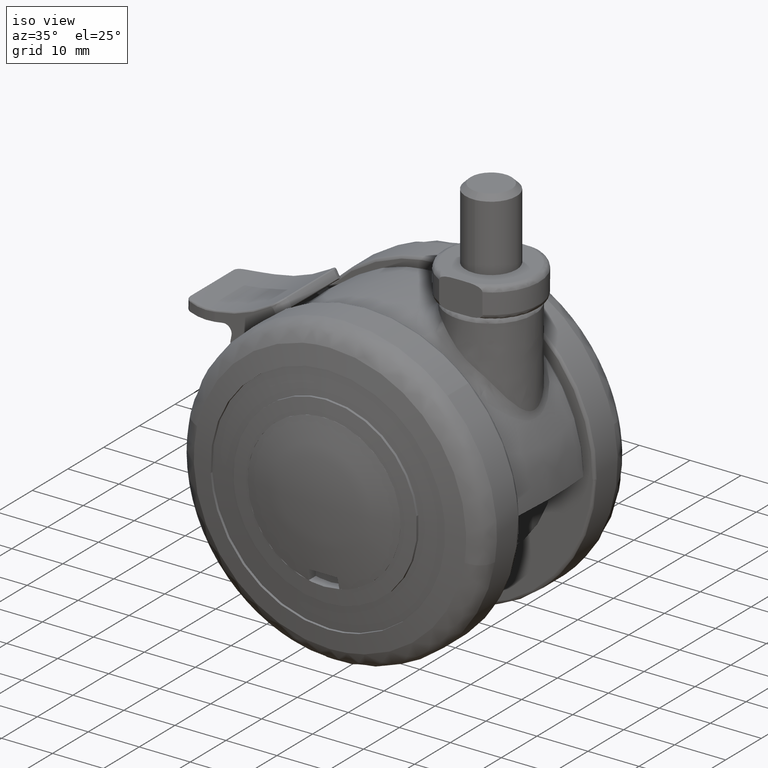
[diagram: clean part render]
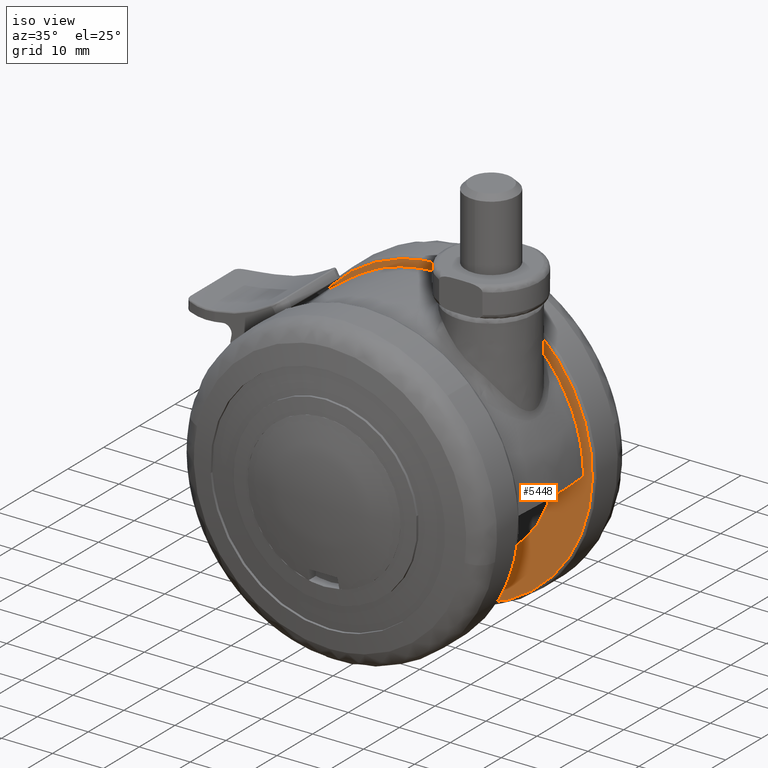
[diagram: same view with one face highlighted and labeled with its STEP entity id]
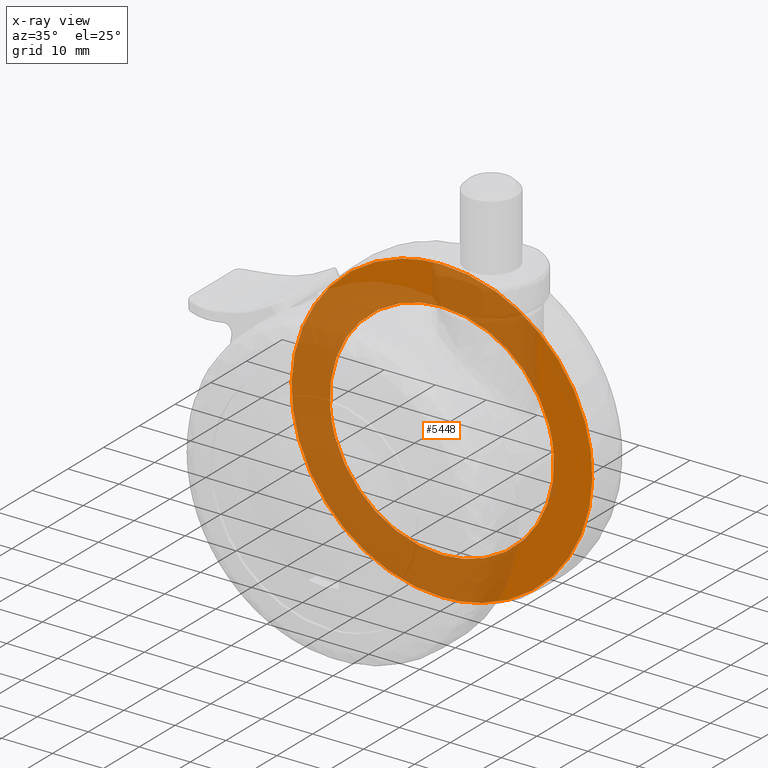
[diagram: x-ray of the same camera — body ghosted, the highlighted face saturated]
A machine part, iso view. The second image highlights one B-rep face of the part: STEP entity #5448.
The next image is the same camera in x-ray: the body ghosted, the highlighted face saturated — about 66% of this face is hidden behind the body in this view.
In plain terms, the highlighted face is a freeform B-spline surface patch.
Its self-contained STEP definition (entity closure, byte-faithful):
#4542=CARTESIAN_POINT('',(21.932183382123039,10.500000000000000,1.726074185036623));
#4543=VERTEX_POINT('',#4542);
#4549=CARTESIAN_POINT('',(0.0,10.500000000000000,22.0));
#4550=VERTEX_POINT('',#4549);
#4551=CARTESIAN_POINT('',(0.0,10.500000000000000,22.0));
#4552=CARTESIAN_POINT('',(20.336614926009290,10.500000000000000,21.999999999999996));
#4553=CARTESIAN_POINT('',(21.932183382123029,10.500000000000005,1.726074185036623));
#4561=(BOUNDED_CURVE()B_SPLINE_CURVE(2,(#4551,#4552,#4553),.UNSPECIFIED.,.F.,.U.)B_SPLINE_CURVE_WITH_KNOTS((3,3),(0.0,0.236331503234167),.UNSPECIFIED.)CURVE()GEOMETRIC_REPRESENTATION_ITEM()RATIONAL_B_SPLINE_CURVE((1.0,0.723120421242892,0.969723778985866))REPRESENTATION_ITEM(''));
#4562=EDGE_CURVE('',#4550,#4543,#4561,.T.);
#4564=CARTESIAN_POINT('',(-21.932183382123039,10.500000000000000,-1.726074185036630));
#4565=VERTEX_POINT('',#4564);
#4566=CARTESIAN_POINT('',(-21.932183382123036,10.499999999999996,-1.726074185036630));
#4567=CARTESIAN_POINT('',(-22.0,10.499999999999998,-0.864369333536733));
#4568=CARTESIAN_POINT('',(-22.0,10.500000000000000,3.857510E-015));
#4569=CARTESIAN_POINT('',(-22.000000000000007,10.500000000000002,22.000000000000007));
#4570=CARTESIAN_POINT('',(0.0,10.500000000000000,22.0));
#4578=(BOUNDED_CURVE()B_SPLINE_CURVE(2,(#4566,#4567,#4568,#4569,#4570),.UNSPECIFIED.,.F.,.U.)B_SPLINE_CURVE_WITH_KNOTS((3,2,3),(0.736331503234167,0.750000000000000,1.0),.UNSPECIFIED.)CURVE()GEOMETRIC_REPRESENTATION_ITEM()RATIONAL_B_SPLINE_CURVE((0.969723778985866,0.983986359943655,1.0,0.707106781186548,1.0))REPRESENTATION_ITEM(''));
#4579=EDGE_CURVE('',#4565,#4550,#4578,.T.);
#4655=CARTESIAN_POINT('',(0.0,10.500000000000000,-22.0));
#4656=VERTEX_POINT('',#4655);
#4657=CARTESIAN_POINT('',(0.0,10.500000000000000,-22.0));
#4658=CARTESIAN_POINT('',(-20.336614926009268,10.500000000000000,-21.999999999999989));
#4659=CARTESIAN_POINT('',(-21.932183382123036,10.499999999999996,-1.726074185036630));
#4667=(BOUNDED_CURVE()B_SPLINE_CURVE(2,(#4657,#4658,#4659),.UNSPECIFIED.,.F.,.U.)B_SPLINE_CURVE_WITH_KNOTS((3,3),(0.500000000000000,0.736331503234167),.UNSPECIFIED.)CURVE()GEOMETRIC_REPRESENTATION_ITEM()RATIONAL_B_SPLINE_CURVE((1.0,0.723120421242892,0.969723778985866))REPRESENTATION_ITEM(''));
#4668=EDGE_CURVE('',#4656,#4565,#4667,.T.);
#4670=CARTESIAN_POINT('',(21.932183382123029,10.500000000000005,1.726074185036623));
#4671=CARTESIAN_POINT('',(21.999999999999996,10.499999999999995,0.864369333536728));
#4672=CARTESIAN_POINT('',(22.0,10.500000000000000,3.857510E-015));
#4673=CARTESIAN_POINT('',(22.000000000000007,10.500000000000002,-21.999999999999989));
#4674=CARTESIAN_POINT('',(0.0,10.500000000000000,-22.0));
#4682=(BOUNDED_CURVE()B_SPLINE_CURVE(2,(#4670,#4671,#4672,#4673,#4674),.UNSPECIFIED.,.F.,.U.)B_SPLINE_CURVE_WITH_KNOTS((3,2,3),(0.236331503234167,0.250000000000000,0.500000000000000),.UNSPECIFIED.)CURVE()GEOMETRIC_REPRESENTATION_ITEM()RATIONAL_B_SPLINE_CURVE((0.969723778985866,0.983986359943656,1.0,0.707106781186548,1.0))REPRESENTATION_ITEM(''));
#4683=EDGE_CURVE('',#4543,#4656,#4682,.T.);
#5179=CARTESIAN_POINT('',(29.490683623598201,10.500000000000000,-0.741337816908187));
#5180=VERTEX_POINT('',#5179);
#5194=CARTESIAN_POINT('',(0.0,10.500000000000000,-29.500000000000000));
#5195=VERTEX_POINT('',#5194);
#5196=CARTESIAN_POINT('',(29.490683623598198,10.500000000000007,-0.741337816908187));
#5197=CARTESIAN_POINT('',(28.767747346684107,10.500000000000000,-29.500000000000000));
#5198=CARTESIAN_POINT('',(0.0,10.500000000000000,-29.500000000000000));
#5206=(BOUNDED_CURVE()B_SPLINE_CURVE(2,(#5196,#5197,#5198),.UNSPECIFIED.,.F.,.U.)B_SPLINE_CURVE_WITH_KNOTS((3,3),(0.254420108234115,0.500000000000000),.UNSPECIFIED.)CURVE()GEOMETRIC_REPRESENTATION_ITEM()RATIONAL_B_SPLINE_CURVE((0.989826157672711,0.712285260099322,1.0))REPRESENTATION_ITEM(''));
#5207=EDGE_CURVE('',#5180,#5195,#5206,.T.);
#5209=CARTESIAN_POINT('',(-29.490683623598191,10.500000000000000,0.741337816908196));
#5210=VERTEX_POINT('',#5209);
#5211=CARTESIAN_POINT('',(0.0,10.500000000000000,-29.500000000000000));
#5212=CARTESIAN_POINT('',(-29.499999999999996,10.500000000000002,-29.499999999999996));
#5213=CARTESIAN_POINT('',(-29.500000000000000,10.500000000000000,3.857510E-015));
#5214=CARTESIAN_POINT('',(-29.500000000000007,10.500000000000005,0.370727447970379));
#5215=CARTESIAN_POINT('',(-29.490683623598198,10.500000000000007,0.741337816908196));
#5223=(BOUNDED_CURVE()B_SPLINE_CURVE(2,(#5211,#5212,#5213,#5214,#5215),.UNSPECIFIED.,.F.,.U.)B_SPLINE_CURVE_WITH_KNOTS((3,2,3),(0.500000000000000,0.750000000000000,0.754420108234115),.UNSPECIFIED.)CURVE()GEOMETRIC_REPRESENTATION_ITEM()RATIONAL_B_SPLINE_CURVE((1.0,0.707106781186548,1.0,0.994821521087225,0.989826157672711))REPRESENTATION_ITEM(''));
#5224=EDGE_CURVE('',#5195,#5210,#5223,.T.);
#5268=CARTESIAN_POINT('',(0.0,10.500000000000000,29.500000000000000));
#5269=VERTEX_POINT('',#5268);
#5270=CARTESIAN_POINT('',(-29.490683623598198,10.500000000000007,0.741337816908196));
#5271=CARTESIAN_POINT('',(-28.767747346684107,10.500000000000000,29.500000000000000));
#5272=CARTESIAN_POINT('',(0.0,10.500000000000000,29.500000000000000));
#5280=(BOUNDED_CURVE()B_SPLINE_CURVE(2,(#5270,#5271,#5272),.UNSPECIFIED.,.F.,.U.)B_SPLINE_CURVE_WITH_KNOTS((3,3),(0.754420108234115,1.0),.UNSPECIFIED.)CURVE()GEOMETRIC_REPRESENTATION_ITEM()RATIONAL_B_SPLINE_CURVE((0.989826157672711,0.712285260099322,1.0))REPRESENTATION_ITEM(''));
#5281=EDGE_CURVE('',#5210,#5269,#5280,.T.);
#5283=CARTESIAN_POINT('',(0.0,10.500000000000000,29.500000000000000));
#5284=CARTESIAN_POINT('',(29.499999999999996,10.500000000000002,29.499999999999996));
#5285=CARTESIAN_POINT('',(29.500000000000000,10.500000000000000,3.857510E-015));
#5286=CARTESIAN_POINT('',(29.500000000000007,10.500000000000005,-0.370727447970371));
#5287=CARTESIAN_POINT('',(29.490683623598198,10.500000000000007,-0.741337816908187));
#5295=(BOUNDED_CURVE()B_SPLINE_CURVE(2,(#5283,#5284,#5285,#5286,#5287),.UNSPECIFIED.,.F.,.U.)B_SPLINE_CURVE_WITH_KNOTS((3,2,3),(0.0,0.250000000000000,0.254420108234115),.UNSPECIFIED.)CURVE()GEOMETRIC_REPRESENTATION_ITEM()RATIONAL_B_SPLINE_CURVE((1.0,0.707106781186548,1.0,0.994821521087225,0.989826157672711))REPRESENTATION_ITEM(''));
#5296=EDGE_CURVE('',#5269,#5180,#5295,.T.);
#5431=CARTESIAN_POINT('',(32.436803910628072,10.500000000000000,32.447049885646557));
#5432=CARTESIAN_POINT('',(32.436803910628072,10.500000000000000,-32.447051468149873));
#5433=CARTESIAN_POINT('',(-32.436804437962579,10.500000000000000,32.447049885646557));
#5434=CARTESIAN_POINT('',(-32.436804437962579,10.500000000000000,-32.447051468149873));
#5435=B_SPLINE_SURFACE_WITH_KNOTS('',1,1,((#5431,#5433),(#5432,#5434)),.UNSPECIFIED.,.F.,.F.,.U.,(2,2),(2,2),(0.0,64.894101353796430),(0.0,64.873608348590636),.UNSPECIFIED.);
#5436=ORIENTED_EDGE('',*,*,#5281,.F.);
#5437=ORIENTED_EDGE('',*,*,#5224,.F.);
#5438=ORIENTED_EDGE('',*,*,#5207,.F.);
#5439=ORIENTED_EDGE('',*,*,#5296,.F.);
#5440=EDGE_LOOP('',(#5436,#5437,#5438,#5439));
#5441=FACE_OUTER_BOUND('',#5440,.T.);
#5442=ORIENTED_EDGE('',*,*,#4668,.T.);
#5443=ORIENTED_EDGE('',*,*,#4579,.T.);
#5444=ORIENTED_EDGE('',*,*,#4562,.T.);
#5445=ORIENTED_EDGE('',*,*,#4683,.T.);
#5446=EDGE_LOOP('',(#5442,#5443,#5444,#5445));
#5447=FACE_BOUND('',#5446,.T.);
#5448=ADVANCED_FACE('',(#5441,#5447),#5435,.F.);